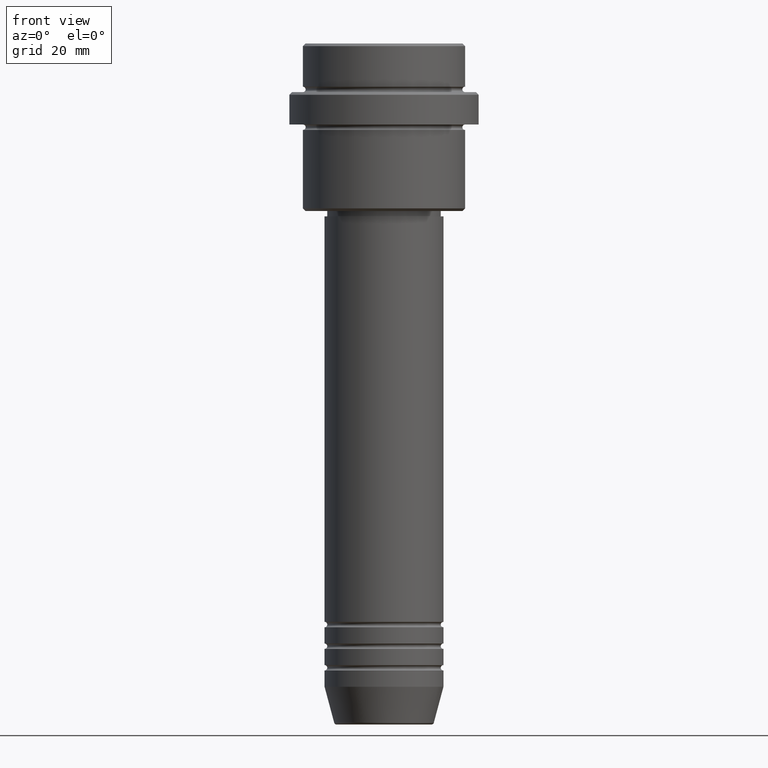
[diagram: clean part render]
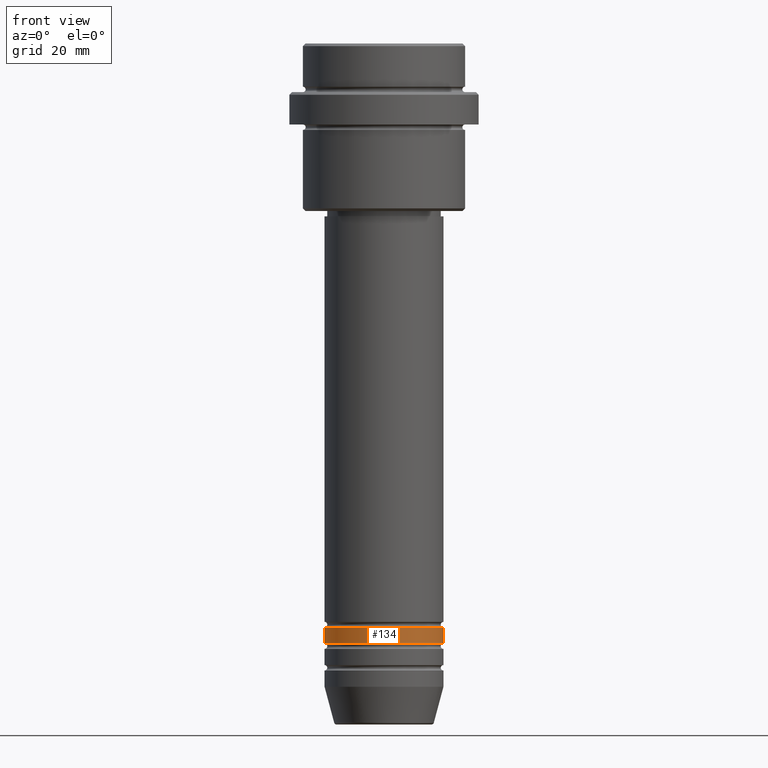
[diagram: same view with one face highlighted and labeled with its STEP entity id]
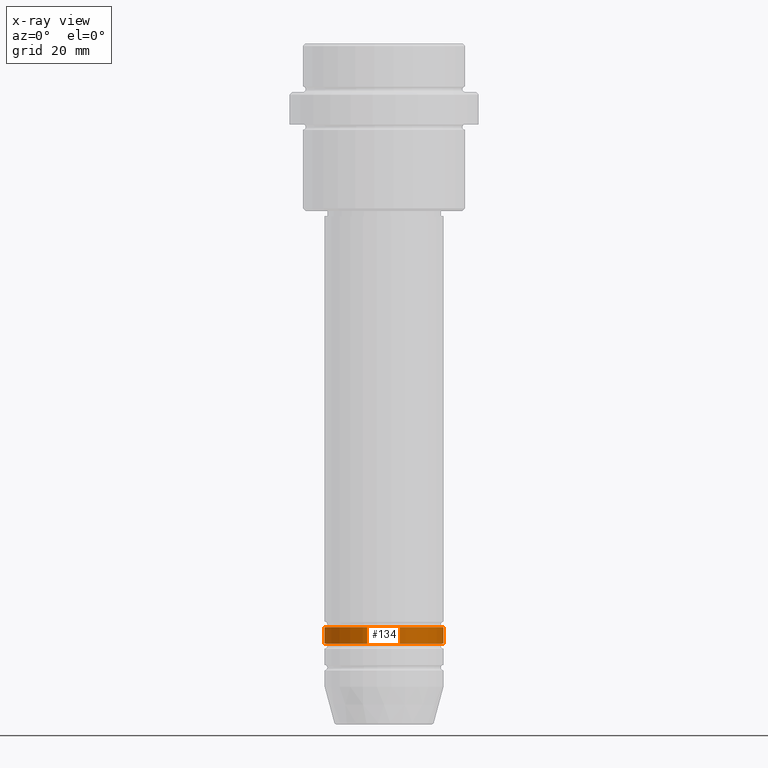
[diagram: x-ray of the same camera — body ghosted, the highlighted face saturated]
A machine part, front view. The second image highlights one B-rep face of the part: STEP entity #134.
The next image is the same camera in x-ray: the body ghosted, the highlighted face saturated — about 0% of this face is hidden behind the body in this view.
In plain terms, the highlighted cylindrical surface (partial cylindrical patch) has radius 11 mm, axis along (-0, -0, 1).
Its self-contained STEP definition (entity closure, byte-faithful):
#33 = CIRCLE ( 'NONE', #246, 11.00000000000000000 ) ;
#68 = DIRECTION ( 'NONE',  ( 1.000000000000000000, 0.000000000000000000, 0.000000000000000000 ) ) ;
#113 = VERTEX_POINT ( 'NONE', #361 ) ;
#134 = ADVANCED_FACE ( 'NONE', ( #918 ), #1253, .T. ) ;
#246 = AXIS2_PLACEMENT_3D ( 'NONE', #450, #1076, #979 ) ;
#254 = LINE ( 'NONE', #688, #382 ) ;
#281 = VERTEX_POINT ( 'NONE', #1156 ) ;
#283 = DIRECTION ( 'NONE',  ( -0.000000000000000000, -0.000000000000000000, 1.000000000000000000 ) ) ;
#318 = EDGE_LOOP ( 'NONE', ( #598, #1216, #658, #1225 ) ) ;
#324 = LINE ( 'NONE', #765, #1176 ) ;
#361 = CARTESIAN_POINT ( 'NONE',  ( -11.00000000000000000, 1.347111479062088405E-15, -110.9999999999998721 ) ) ;
#368 = DIRECTION ( 'NONE',  ( 1.000000000000000000, 0.000000000000000000, 0.000000000000000000 ) ) ;
#382 = VECTOR ( 'NONE', #1015, 1000.000000000000000 ) ;
#427 = VERTEX_POINT ( 'NONE', #531 ) ;
#450 = CARTESIAN_POINT ( 'NONE',  ( 0.000000000000000000, 0.000000000000000000, -107.9999999999998721 ) ) ;
#487 = DIRECTION ( 'NONE',  ( -0.000000000000000000, -0.000000000000000000, 1.000000000000000000 ) ) ;
#501 = CARTESIAN_POINT ( 'NONE',  ( 0.000000000000000000, 0.000000000000000000, -110.9999999999998721 ) ) ;
#510 = AXIS2_PLACEMENT_3D ( 'NONE', #501, #1377, #68 ) ;
#531 = CARTESIAN_POINT ( 'NONE',  ( 11.00000000000000000, 0.000000000000000000, -107.9999999999998721 ) ) ;
#598 = ORIENTED_EDGE ( 'NONE', *, *, #1338, .F. ) ;
#658 = ORIENTED_EDGE ( 'NONE', *, *, #1335, .T. ) ;
#688 = CARTESIAN_POINT ( 'NONE',  ( 11.00000000000000000, 0.000000000000000000, 0.000000000000000000 ) ) ;
#765 = CARTESIAN_POINT ( 'NONE',  ( -11.00000000000000000, 1.347111479062088405E-15, 0.000000000000000000 ) ) ;
#839 = EDGE_CURVE ( 'NONE', #1300, #427, #33, .T. ) ;
#918 = FACE_OUTER_BOUND ( 'NONE', #318, .T. ) ;
#979 = DIRECTION ( 'NONE',  ( 1.000000000000000000, 0.000000000000000000, 0.000000000000000000 ) ) ;
#992 = AXIS2_PLACEMENT_3D ( 'NONE', #1347, #283, #368 ) ;
#1002 = CARTESIAN_POINT ( 'NONE',  ( -11.00000000000000000, 1.347111479062088405E-15, -107.9999999999998721 ) ) ;
#1015 = DIRECTION ( 'NONE',  ( -0.000000000000000000, -0.000000000000000000, 1.000000000000000000 ) ) ;
#1076 = DIRECTION ( 'NONE',  ( -0.000000000000000000, -0.000000000000000000, 1.000000000000000000 ) ) ;
#1087 = EDGE_CURVE ( 'NONE', #113, #281, #1246, .T. ) ;
#1156 = CARTESIAN_POINT ( 'NONE',  ( 11.00000000000000000, 0.000000000000000000, -110.9999999999998721 ) ) ;
#1176 = VECTOR ( 'NONE', #487, 1000.000000000000000 ) ;
#1216 = ORIENTED_EDGE ( 'NONE', *, *, #1087, .T. ) ;
#1225 = ORIENTED_EDGE ( 'NONE', *, *, #839, .F. ) ;
#1246 = CIRCLE ( 'NONE', #510, 11.00000000000000000 ) ;
#1253 = CYLINDRICAL_SURFACE ( 'NONE', #992, 11.00000000000000000 ) ;
#1300 = VERTEX_POINT ( 'NONE', #1002 ) ;
#1335 = EDGE_CURVE ( 'NONE', #281, #427, #254, .T. ) ;
#1338 = EDGE_CURVE ( 'NONE', #113, #1300, #324, .T. ) ;
#1347 = CARTESIAN_POINT ( 'NONE',  ( 0.000000000000000000, 0.000000000000000000, 0.000000000000000000 ) ) ;
#1377 = DIRECTION ( 'NONE',  ( -0.000000000000000000, -0.000000000000000000, 1.000000000000000000 ) ) ;